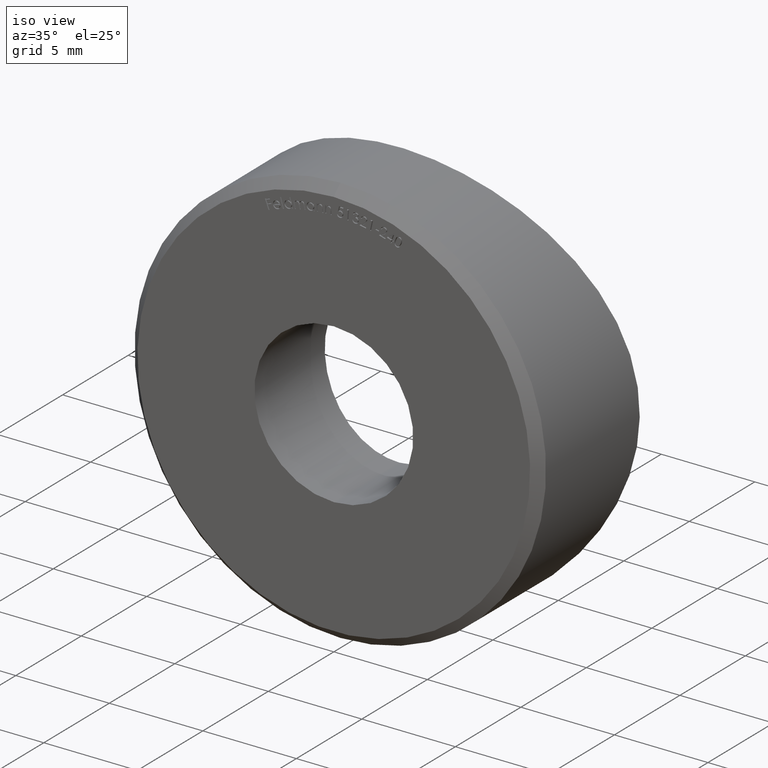
[diagram: clean part render]
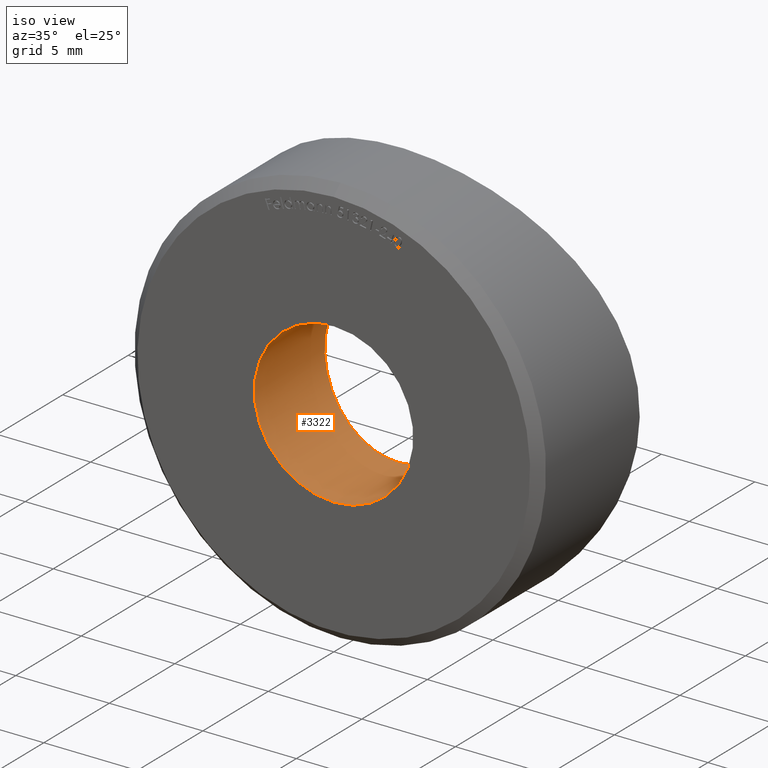
[diagram: same view with one face highlighted and labeled with its STEP entity id]
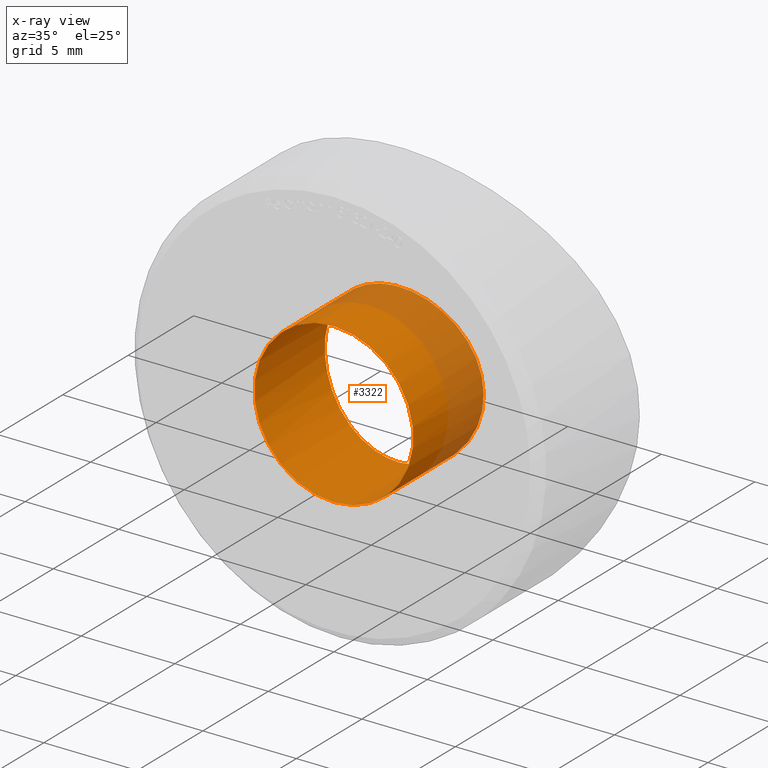
[diagram: x-ray of the same camera — body ghosted, the highlighted face saturated]
A machine part, iso view. The second image highlights one B-rep face of the part: STEP entity #3322.
The next image is the same camera in x-ray: the body ghosted, the highlighted face saturated — about 25% of this face is hidden behind the body in this view.
In plain terms, the highlighted cylindrical surface (bore or boss wall) has radius 4.25 mm, axis along (-0, -1, -0).
Its self-contained STEP definition (entity closure, byte-faithful):
#5 = CARTESIAN_POINT ( 'NONE',  ( -4.113072314720137790, 5.352769453094300189, 1.105408986541508209 ) ) ;
#581 = FACE_OUTER_BOUND ( 'NONE', #10429, .T. ) ;
#816 = CARTESIAN_POINT ( 'NONE',  ( 2.808330957753668145, 5.163014304193909609, 3.202187013256097003 ) ) ;
#902 = CARTESIAN_POINT ( 'NONE',  ( 0.2793127488579734141, 5.000019359028086363, 4.249889995161500345 ) ) ;
#925 = VERTEX_POINT ( 'NONE', #5347 ) ;
#945 = CARTESIAN_POINT ( 'NONE',  ( -4.250217269924660535, 5.376944807035669349, -0.2774688307468533566 ) ) ;
#1099 = CARTESIAN_POINT ( 'NONE',  ( -2.129399365503156893, 5.092935533748969235, 3.688603192954794441 ) ) ;
#1679 = CARTESIAN_POINT ( 'NONE',  ( 0.000000000000000000, 0.000000000000000000, -4.250000000000000000 ) ) ;
#1750 = CARTESIAN_POINT ( 'NONE',  ( 3.687603556179498199, 5.282684683410434623, -2.131224756867477144 ) ) ;
#1798 = CARTESIAN_POINT ( 'NONE',  ( 4.250160549647422847, 5.376934666958518960, 0.2752988463117961859 ) ) ;
#1838 = CARTESIAN_POINT ( 'NONE',  ( -2.812155662977739556, 5.163482144819576014, -3.198548339281710451 ) ) ;
#1886 = CARTESIAN_POINT ( 'NONE',  ( -1.377117058759243395, 5.037935698258891648, -4.030217029902718018 ) ) ;
#1962 = CARTESIAN_POINT ( 'NONE',  ( 2.710505431213761085E-16, 4.999999999999997335, -4.250000000000000000 ) ) ;
#2558 = CARTESIAN_POINT ( 'NONE',  ( -0.5522824472027180187, 5.004748097837676823, 4.223278163675552754 ) ) ;
#2593 = EDGE_CURVE ( 'NONE', #925, #925, #5974, .T. ) ;
#2722 = CARTESIAN_POINT ( 'NONE',  ( 3.203756559836477891, 5.212620246894432263, 2.806540279676807526 ) ) ;
#2835 = CARTESIAN_POINT ( 'NONE',  ( -3.377911451743490723, 5.236897480079441003, 2.594022648570667666 ) ) ;
#3322 = ADVANCED_FACE ( 'NONE', ( #581, #3745 ), #8070, .F. ) ;
#3568 = CARTESIAN_POINT ( 'NONE',  ( 4.113315662314783516, 5.352810714439498518, -1.105184363735586262 ) ) ;
#3604 = CARTESIAN_POINT ( 'NONE',  ( 1.107078118417477164, 5.023843508566051774, 4.112702491814707706 ) ) ;
#3676 = CARTESIAN_POINT ( 'NONE',  ( -3.689993018509506228, 5.283061343414098054, -2.126903510462974101 ) ) ;
#3745 = FACE_OUTER_BOUND ( 'NONE', #7417, .T. ) ;
#3755 = CARTESIAN_POINT ( 'NONE',  ( -2.592754079487797902, 5.138454471349359842, 3.379017824188107255 ) ) ;
#3795 = CARTESIAN_POINT ( 'NONE',  ( -1.369749905765262898, 5.037512725645671097, 4.032736373866104174 ) ) ;
#3833 = CARTESIAN_POINT ( 'NONE',  ( -0.5592339483320902804, 5.004914287481455837, -4.222332083895716792 ) ) ;
#3881 = AXIS2_PLACEMENT_3D ( 'NONE', #6214, #8901, #9933 ) ;
#4495 = CARTESIAN_POINT ( 'NONE',  ( 4.222709979461138019, 5.371978550350350545, -0.5563439988433902528 ) ) ;
#4529 = CARTESIAN_POINT ( 'NONE',  ( 3.820081887678230093, 5.303801996694569532, 1.883404392682262563 ) ) ;
#4701 = CARTESIAN_POINT ( 'NONE',  ( -3.816897588674447395, 5.303289863887521882, 1.889872967700806372 ) ) ;
#4740 = CARTESIAN_POINT ( 'NONE',  ( -1.108112126829188471, 5.023873203760857109, -4.112531866142359327 ) ) ;
#4829 = VERTEX_POINT ( 'NONE', #1679 ) ;
#4904 = DIRECTION ( 'NONE',  ( 0.000000000000000000, 0.000000000000000000, -1.000000000000000000 ) ) ;
#5344 = CARTESIAN_POINT ( 'NONE',  ( 0.5579137003386205329, 5.004911900057258833, -4.222336273849698784 ) ) ;
#5347 = CARTESIAN_POINT ( 'NONE',  ( 0.000000000000000000, 4.999999999999997335, -4.250000000000000000 ) ) ;
#5381 = CARTESIAN_POINT ( 'NONE',  ( 1.886458706887756742, 5.072412237855876249, -3.818550406668221875 ) ) ;
#5421 = CARTESIAN_POINT ( 'NONE',  ( 3.687264933717268267, 5.282643574474595205, 2.131443947208734091 ) ) ;
#5454 = ORIENTED_EDGE ( 'NONE', *, *, #10173, .T. ) ;
#5502 = CARTESIAN_POINT ( 'NONE',  ( 2.594330836902676296, 5.138642574579467492, 3.377640486162412081 ) ) ;
#5588 = CARTESIAN_POINT ( 'NONE',  ( -2.133326707429783475, 5.093274197861891395, -3.686439199327965710 ) ) ;
#5623 = CARTESIAN_POINT ( 'NONE',  ( -1.888180599146490168, 5.072565121885795669, -3.817574455940632827 ) ) ;
#5663 = CARTESIAN_POINT ( 'NONE',  ( -0.2813618033622371506, 4.999999999999998224, -4.250000000000000000 ) ) ;
#5974 = B_SPLINE_CURVE_WITH_KNOTS ( 'NONE', 3,
 ( #9049, #9920, #5344, #9958, #10877, #5381, #11858, #11815, #9166, #9095, #6318, #1750, #10951, #7301, #3568, #4495, #10914, #1798, #6399, #7337, #8231, #4529, #5421, #6361, #2722, #816, #5502, #6439, #8199, #9129, #3604, #10034, #902, #8071, #2558, #6477, #3795, #9360, #1099, #3755, #10191, #10150, #2835, #7493, #4701, #10110, #5, #7454, #6563, #945, #9281, #8357, #8441, #7529, #3676, #11196, #7413, #1838, #11111, #5588, #5623, #1886, #4740, #3833, #5663, #1962 ),
 .UNSPECIFIED., .T., .F.,
 ( 4, 2, 2, 2, 2, 2, 2, 2, 2, 2, 2, 2, 2, 2, 2, 2, 2, 2, 2, 2, 2, 2, 2, 2, 2, 2, 2, 2, 2, 2, 2, 2, 4 ),
 ( 0.000000000000000000, 0.0008319815547009524635, 0.001663963109401904927, 0.002495944664102857282, 0.003327926218803809854, 0.004159907773504761992, 0.004991889328205714564, 0.005823870882906666269, 0.006655852437607617973, 0.007487833992308570545, 0.008319815547009522250, 0.009151797101710474822, 0.009983778656411427394, 0.01081576021111237997, 0.01164774176581333254, 0.01247972332051428337, 0.01331170487521523421, 0.01414368642991618505, 0.01497566798461713762, 0.01580764953931809019, 0.01663963109401904103, 0.01747161264871999534, 0.01830359420342094617, 0.01913557575812189701, 0.01996755731282285132, 0.02079953886752380562, 0.02163152042222475993, 0.02246350197692571077, 0.02329548353162666161, 0.02412746508632761591, 0.02495944664102856675, 0.02579142819572952106, 0.02662340975043047189 ),
 .UNSPECIFIED. ) ;
#6005 = CIRCLE ( 'NONE', #7929, 4.250000000000000000 ) ;
#6214 = CARTESIAN_POINT ( 'NONE',  ( 0.000000000000000000, 8.365820659786226798, 0.000000000000000000 ) ) ;
#6318 = CARTESIAN_POINT ( 'NONE',  ( 3.376908523188055344, 5.236747414141287749, -2.595578505430415461 ) ) ;
#6361 = CARTESIAN_POINT ( 'NONE',  ( 3.379961016596194856, 5.237189856464384619, 2.591300738587433816 ) ) ;
#6399 = CARTESIAN_POINT ( 'NONE',  ( 4.222441610039330051, 5.371931763782272995, 0.5575182968761631663 ) ) ;
#6439 = CARTESIAN_POINT ( 'NONE',  ( 2.134650071923260395, 5.093418634954804070, 3.685414062965735038 ) ) ;
#6477 = CARTESIAN_POINT ( 'NONE',  ( -1.102251484462979603, 5.023598548781446738, 4.114138550689088625 ) ) ;
#6563 = CARTESIAN_POINT ( 'NONE',  ( -4.249780154958650691, 5.376866662473499758, 0.2840852479829276134 ) ) ;
#7301 = CARTESIAN_POINT ( 'NONE',  ( 4.031418363592847776, 5.338622015222270534, -1.373582619719611042 ) ) ;
#7337 = CARTESIAN_POINT ( 'NONE',  ( 4.113784815276742002, 5.352892682302403671, 1.103002400333616517 ) ) ;
#7413 = CARTESIAN_POINT ( 'NONE',  ( -3.202833018643484575, 5.212516445031360135, -2.807274765003709760 ) ) ;
#7417 = EDGE_LOOP ( 'NONE', ( #10968 ) ) ;
#7454 = CARTESIAN_POINT ( 'NONE',  ( -4.221789862155840289, 5.371815966552509813, 0.5619459524208547663 ) ) ;
#7493 = CARTESIAN_POINT ( 'NONE',  ( -3.686060999260731386, 5.282454834780772046, 2.133587023499712299 ) ) ;
#7529 = CARTESIAN_POINT ( 'NONE',  ( -3.820304413144141265, 5.303838858301348935, -1.882848268331494879 ) ) ;
#7656 = CARTESIAN_POINT ( 'NONE',  ( 0.000000000000000000, 0.000000000000000000, 0.000000000000000000 ) ) ;
#7929 = AXIS2_PLACEMENT_3D ( 'NONE', #7656, #11290, #4904 ) ;
#8070 = CYLINDRICAL_SURFACE ( 'NONE', #3881, 4.250000000000000000 ) ;
#8071 = CARTESIAN_POINT ( 'NONE',  ( -0.2759550086074878950, 4.999980757684324928, 4.250109341637323013 ) ) ;
#8199 = CARTESIAN_POINT ( 'NONE',  ( 1.885923873449385946, 5.072372887126840091, 3.818795220130341672 ) ) ;
#8231 = CARTESIAN_POINT ( 'NONE',  ( 4.033397771673864263, 5.338954511469444775, 1.368188638455396733 ) ) ;
#8357 = CARTESIAN_POINT ( 'NONE',  ( -4.115030892864988132, 5.353109069321988045, -1.098180579145040303 ) ) ;
#8441 = CARTESIAN_POINT ( 'NONE',  ( -4.033091778774366531, 5.338903895264926369, -1.368946351991240595 ) ) ;
#8901 = DIRECTION ( 'NONE',  ( -0.000000000000000000, -1.000000000000000000, -0.000000000000000000 ) ) ;
#9049 = CARTESIAN_POINT ( 'NONE',  ( 2.710505431213761085E-16, 4.999999999999997335, -4.250000000000000000 ) ) ;
#9095 = CARTESIAN_POINT ( 'NONE',  ( 3.201187254214437061, 5.212294316051450771, -2.809167777818603273 ) ) ;
#9129 = CARTESIAN_POINT ( 'NONE',  ( 1.371980556560373321, 5.037627541126704855, 4.032068345422355371 ) ) ;
#9166 = CARTESIAN_POINT ( 'NONE',  ( 2.810027745085969642, 5.163230786124308302, -3.200432394587697349 ) ) ;
#9281 = CARTESIAN_POINT ( 'NONE',  ( -4.222880750608302591, 5.372010695141600678, -0.5538573821720025325 ) ) ;
#9360 = CARTESIAN_POINT ( 'NONE',  ( -1.881450655007634420, 5.072034953239617394, 3.820905769345539049 ) ) ;
#9920 = CARTESIAN_POINT ( 'NONE',  ( 0.2813618033622376502, 4.999999999999995559, -4.250000000000000000 ) ) ;
#9933 = DIRECTION ( 'NONE',  ( 0.000000000000000000, 0.000000000000000000, -1.000000000000000000 ) ) ;
#9958 = CARTESIAN_POINT ( 'NONE',  ( 1.101824040693972551, 5.023613390431400205, -4.114046072887528105 ) ) ;
#10034 = CARTESIAN_POINT ( 'NONE',  ( 0.5613307113423684491, 5.004980703218662619, 4.221948789239579725 ) ) ;
#10110 = CARTESIAN_POINT ( 'NONE',  ( -4.031188988933084083, 5.338578226957905848, 1.374715378534673293 ) ) ;
#10150 = CARTESIAN_POINT ( 'NONE',  ( -3.198536707539615165, 5.211936062310648765, 2.812223530883088074 ) ) ;
#10173 = EDGE_CURVE ( 'NONE', #4829, #4829, #6005, .T. ) ;
#10191 = CARTESIAN_POINT ( 'NONE',  ( -2.806421014457519458, 5.162804598202964002, 3.203629090069904706 ) ) ;
#10429 = EDGE_LOOP ( 'NONE', ( #5454 ) ) ;
#10877 = CARTESIAN_POINT ( 'NONE',  ( 1.372040906835041651, 5.037628431725833522, -4.032066146658553230 ) ) ;
#10914 = CARTESIAN_POINT ( 'NONE',  ( 4.249838017785664945, 5.376877006808263637, -0.2802337865845110354 ) ) ;
#10951 = CARTESIAN_POINT ( 'NONE',  ( 3.819283825599112614, 5.303676874289647181, -1.884710666130602341 ) ) ;
#10968 = ORIENTED_EDGE ( 'NONE', *, *, #2593, .F. ) ;
#11111 = CARTESIAN_POINT ( 'NONE',  ( -2.598578195747461184, 5.139074767504760999, -3.374656748702139719 ) ) ;
#11196 = CARTESIAN_POINT ( 'NONE',  ( -3.381524318149081942, 5.237407028938715570, -2.589413119846852407 ) ) ;
#11290 = DIRECTION ( 'NONE',  ( 0.000000000000000000, -1.000000000000000000, 0.000000000000000000 ) ) ;
#11815 = CARTESIAN_POINT ( 'NONE',  ( 2.591919962769869024, 5.138373105100870752, -3.379569522489425104 ) ) ;
#11858 = CARTESIAN_POINT ( 'NONE',  ( 2.130352193734991850, 5.093028562100825773, -3.687972177415778763 ) ) ;